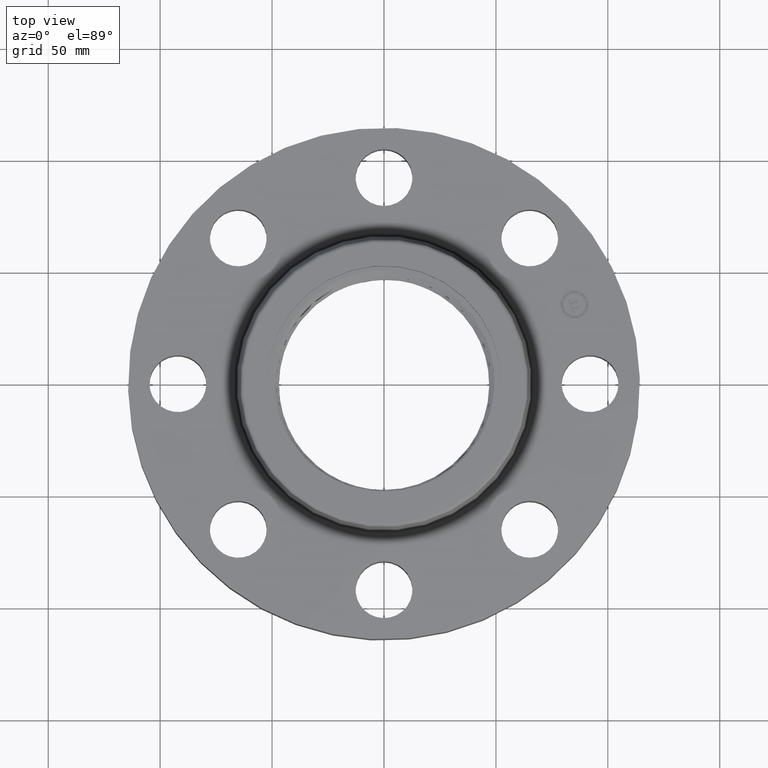
[diagram: clean part render]
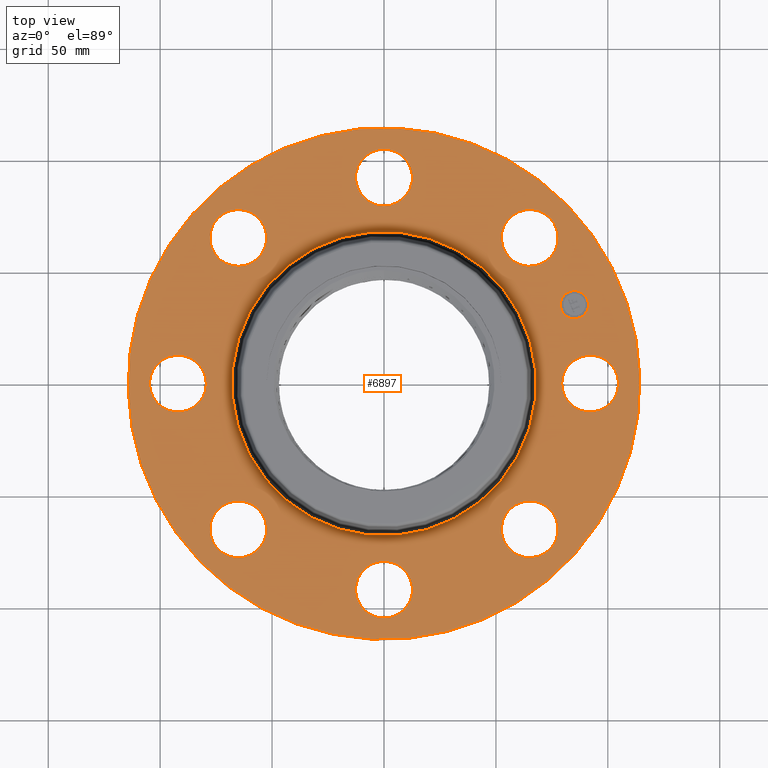
[diagram: same view with one face highlighted and labeled with its STEP entity id]
A machine part, top view. The second image highlights one B-rep face of the part: STEP entity #6897.
In plain terms, the highlighted planar face has unit normal (0, 0, -1).
Its self-contained STEP definition (entity closure, byte-faithful):
#536=AXIS2_PLACEMENT_3D('Circle Axis2P3D',#534,#535,$) ;
#548=AXIS2_PLACEMENT_3D('Circle Axis2P3D',#546,#547,$) ;
#572=AXIS2_PLACEMENT_3D('Circle Axis2P3D',#570,#571,$) ;
#591=AXIS2_PLACEMENT_3D('Circle Axis2P3D',#589,#590,$) ;
#608=AXIS2_PLACEMENT_3D('Circle Axis2P3D',#606,#607,$) ;
#643=AXIS2_PLACEMENT_3D('Circle Axis2P3D',#641,#642,$) ;
#765=AXIS2_PLACEMENT_3D('Circle Axis2P3D',#763,#764,$) ;
#777=AXIS2_PLACEMENT_3D('Circle Axis2P3D',#775,#776,$) ;
#808=AXIS2_PLACEMENT_3D('Circle Axis2P3D',#806,#807,$) ;
#820=AXIS2_PLACEMENT_3D('Circle Axis2P3D',#818,#819,$) ;
#851=AXIS2_PLACEMENT_3D('Circle Axis2P3D',#849,#850,$) ;
#863=AXIS2_PLACEMENT_3D('Circle Axis2P3D',#861,#862,$) ;
#894=AXIS2_PLACEMENT_3D('Circle Axis2P3D',#892,#893,$) ;
#906=AXIS2_PLACEMENT_3D('Circle Axis2P3D',#904,#905,$) ;
#937=AXIS2_PLACEMENT_3D('Circle Axis2P3D',#935,#936,$) ;
#949=AXIS2_PLACEMENT_3D('Circle Axis2P3D',#947,#948,$) ;
#980=AXIS2_PLACEMENT_3D('Circle Axis2P3D',#978,#979,$) ;
#992=AXIS2_PLACEMENT_3D('Circle Axis2P3D',#990,#991,$) ;
#1023=AXIS2_PLACEMENT_3D('Circle Axis2P3D',#1021,#1022,$) ;
#1035=AXIS2_PLACEMENT_3D('Circle Axis2P3D',#1033,#1034,$) ;
#6837=AXIS2_PLACEMENT_3D('Plane Axis2P3D',#6834,#6835,#6836) ;
#6881=AXIS2_PLACEMENT_3D('Circle Axis2P3D',#6879,#6880,$) ;
#6890=AXIS2_PLACEMENT_3D('Circle Axis2P3D',#6888,#6889,$) ;
#524=CARTESIAN_POINT('Vertex',(3.18620871907,0.239712769303,1.38000000001)) ;
#531=CARTESIAN_POINT('Vertex',(4.06379128096,-0.239712769303,1.38000000001)) ;
#534=CARTESIAN_POINT('Axis2P3D Location',(3.62500000001,0.,1.38000000001)) ;
#546=CARTESIAN_POINT('Axis2P3D Location',(3.62500000001,0.,1.38000000001)) ;
#567=CARTESIAN_POINT('Vertex',(2.15741492373,3.94912152852,1.38000000001)) ;
#570=CARTESIAN_POINT('Axis2P3D Location',(0.,0.,1.38000000001)) ;
#574=CARTESIAN_POINT('Vertex',(-2.15741492373,-3.94912152852,1.38000000001)) ;
#589=CARTESIAN_POINT('Axis2P3D Location',(0.,0.,1.38000000001)) ;
#606=CARTESIAN_POINT('Axis2P3D Location',(0.,0.,1.38000000001)) ;
#610=CARTESIAN_POINT('Vertex',(1.2826291864,2.34783697721,1.38000000001)) ;
#612=CARTESIAN_POINT('Vertex',(-1.2826291864,-2.34783697721,1.38000000001)) ;
#641=CARTESIAN_POINT('Axis2P3D Location',(0.,0.,1.38000000001)) ;
#753=CARTESIAN_POINT('Vertex',(-2.42249231624,2.08348726682,1.38000000001)) ;
#760=CARTESIAN_POINT('Vertex',(-2.70403184738,3.04303689681,1.38000000001)) ;
#763=CARTESIAN_POINT('Axis2P3D Location',(-2.56326208181,2.56326208181,1.38000000001)) ;
#775=CARTESIAN_POINT('Axis2P3D Location',(-2.56326208181,2.56326208181,1.38000000001)) ;
#796=CARTESIAN_POINT('Vertex',(0.239712769303,-3.18620871907,1.38000000001)) ;
#803=CARTESIAN_POINT('Vertex',(-0.239712769303,-4.06379128096,1.38000000001)) ;
#806=CARTESIAN_POINT('Axis2P3D Location',(-3.37515236756E-016,-3.62500000001,1.38000000001)) ;
#818=CARTESIAN_POINT('Axis2P3D Location',(-3.37515236756E-016,-3.62500000001,1.38000000001)) ;
#839=CARTESIAN_POINT('Vertex',(-0.239712769303,3.18620871907,1.38000000001)) ;
#846=CARTESIAN_POINT('Vertex',(0.239712769303,4.06379128096,1.38000000001)) ;
#849=CARTESIAN_POINT('Axis2P3D Location',(-6.65901697039E-016,3.62500000001,1.38000000001)) ;
#861=CARTESIAN_POINT('Axis2P3D Location',(-6.65901697039E-016,3.62500000001,1.38000000001)) ;
#882=CARTESIAN_POINT('Vertex',(-2.08348726682,-2.42249231624,1.38000000001)) ;
#889=CARTESIAN_POINT('Vertex',(-3.04303689681,-2.70403184738,1.38000000001)) ;
#892=CARTESIAN_POINT('Axis2P3D Location',(-2.56326208181,-2.56326208181,1.38000000001)) ;
#904=CARTESIAN_POINT('Axis2P3D Location',(-2.56326208181,-2.56326208181,1.38000000001)) ;
#925=CARTESIAN_POINT('Vertex',(2.08348726682,2.42249231624,1.38000000001)) ;
#932=CARTESIAN_POINT('Vertex',(3.04303689681,2.70403184738,1.38000000001)) ;
#935=CARTESIAN_POINT('Axis2P3D Location',(2.56326208181,2.56326208181,1.38000000001)) ;
#947=CARTESIAN_POINT('Axis2P3D Location',(2.56326208181,2.56326208181,1.38000000001)) ;
#968=CARTESIAN_POINT('Vertex',(-3.18620871907,-0.239712769303,1.38000000001)) ;
#975=CARTESIAN_POINT('Vertex',(-4.06379128096,0.239712769303,1.38000000001)) ;
#978=CARTESIAN_POINT('Axis2P3D Location',(-3.62500000001,-4.43934464693E-016,1.38000000001)) ;
#990=CARTESIAN_POINT('Axis2P3D Location',(-3.62500000001,-4.43934464693E-016,1.38000000001)) ;
#1011=CARTESIAN_POINT('Vertex',(2.42249231624,-2.08348726682,1.38000000001)) ;
#1018=CARTESIAN_POINT('Vertex',(2.70403184738,-3.04303689681,1.38000000001)) ;
#1021=CARTESIAN_POINT('Axis2P3D Location',(2.56326208181,-2.56326208181,1.38000000001)) ;
#1033=CARTESIAN_POINT('Axis2P3D Location',(2.56326208181,-2.56326208181,1.38000000001)) ;
#6834=CARTESIAN_POINT('Axis2P3D Location',(0.,4.50000000002,1.38000000001)) ;
#6879=CARTESIAN_POINT('Axis2P3D Location',(3.34906330537,1.38722744233,1.38000000001)) ;
#6883=CARTESIAN_POINT('Vertex',(3.25434915586,1.61588762663,1.38000000001)) ;
#6885=CARTESIAN_POINT('Vertex',(3.44377745488,1.15856725803,1.38000000001)) ;
#6888=CARTESIAN_POINT('Axis2P3D Location',(3.34906330537,1.38722744233,1.38000000001)) ;
#535=DIRECTION('Axis2P3D Direction',(0.,-0.,-0.0393700787402)) ;
#547=DIRECTION('Axis2P3D Direction',(0.,-0.,-0.0393700787402)) ;
#571=DIRECTION('Axis2P3D Direction',(0.,0.,-0.0393700787402)) ;
#590=DIRECTION('Axis2P3D Direction',(0.,0.,-0.0393700787402)) ;
#607=DIRECTION('Axis2P3D Direction',(0.,0.,-0.0393700787402)) ;
#642=DIRECTION('Axis2P3D Direction',(0.,0.,-0.0393700787402)) ;
#764=DIRECTION('Axis2P3D Direction',(0.,0.,-0.0393700787402)) ;
#776=DIRECTION('Axis2P3D Direction',(0.,0.,-0.0393700787402)) ;
#807=DIRECTION('Axis2P3D Direction',(0.,-0.,-0.0393700787402)) ;
#819=DIRECTION('Axis2P3D Direction',(0.,-0.,-0.0393700787402)) ;
#850=DIRECTION('Axis2P3D Direction',(0.,0.,-0.0393700787402)) ;
#862=DIRECTION('Axis2P3D Direction',(0.,0.,-0.0393700787402)) ;
#893=DIRECTION('Axis2P3D Direction',(-0.,0.,-0.0393700787402)) ;
#905=DIRECTION('Axis2P3D Direction',(-0.,0.,-0.0393700787402)) ;
#936=DIRECTION('Axis2P3D Direction',(0.,0.,-0.0393700787402)) ;
#948=DIRECTION('Axis2P3D Direction',(0.,0.,-0.0393700787402)) ;
#979=DIRECTION('Axis2P3D Direction',(-0.,0.,-0.0393700787402)) ;
#991=DIRECTION('Axis2P3D Direction',(-0.,0.,-0.0393700787402)) ;
#1022=DIRECTION('Axis2P3D Direction',(0.,-0.,-0.0393700787402)) ;
#1034=DIRECTION('Axis2P3D Direction',(0.,-0.,-0.0393700787402)) ;
#6835=DIRECTION('Axis2P3D Direction',(0.,0.,-0.0393700787402)) ;
#6836=DIRECTION('Axis2P3D XDirection',(0.0393700787402,0.,0.)) ;
#6880=DIRECTION('Axis2P3D Direction',(0.,0.,-0.0393700787402)) ;
#6889=DIRECTION('Axis2P3D Direction',(0.,0.,-0.0393700787402)) ;
#6840=ORIENTED_EDGE('',*,*,#576,.F.) ;
#6841=ORIENTED_EDGE('',*,*,#593,.F.) ;
#6844=ORIENTED_EDGE('',*,*,#538,.T.) ;
#6845=ORIENTED_EDGE('',*,*,#550,.T.) ;
#6848=ORIENTED_EDGE('',*,*,#645,.T.) ;
#6849=ORIENTED_EDGE('',*,*,#614,.T.) ;
#6852=ORIENTED_EDGE('',*,*,#1037,.T.) ;
#6853=ORIENTED_EDGE('',*,*,#1025,.T.) ;
#6856=ORIENTED_EDGE('',*,*,#822,.T.) ;
#6857=ORIENTED_EDGE('',*,*,#810,.T.) ;
#6860=ORIENTED_EDGE('',*,*,#908,.T.) ;
#6861=ORIENTED_EDGE('',*,*,#896,.T.) ;
#6864=ORIENTED_EDGE('',*,*,#994,.T.) ;
#6865=ORIENTED_EDGE('',*,*,#982,.T.) ;
#6868=ORIENTED_EDGE('',*,*,#779,.T.) ;
#6869=ORIENTED_EDGE('',*,*,#767,.T.) ;
#6872=ORIENTED_EDGE('',*,*,#865,.T.) ;
#6873=ORIENTED_EDGE('',*,*,#853,.T.) ;
#6876=ORIENTED_EDGE('',*,*,#951,.T.) ;
#6877=ORIENTED_EDGE('',*,*,#939,.T.) ;
#6894=ORIENTED_EDGE('',*,*,#6887,.T.) ;
#6895=ORIENTED_EDGE('',*,*,#6892,.T.) ;
#6846=FACE_BOUND('',#6843,.T.) ;
#6850=FACE_BOUND('',#6847,.T.) ;
#6854=FACE_BOUND('',#6851,.T.) ;
#6858=FACE_BOUND('',#6855,.T.) ;
#6862=FACE_BOUND('',#6859,.T.) ;
#6866=FACE_BOUND('',#6863,.T.) ;
#6870=FACE_BOUND('',#6867,.T.) ;
#6874=FACE_BOUND('',#6871,.T.) ;
#6878=FACE_BOUND('',#6875,.T.) ;
#6896=FACE_BOUND('',#6893,.T.) ;
#6897=ADVANCED_FACE('PartBody',(#6842,#6846,#6850,#6854,#6858,#6862,#6866,#6870,#6874,#6878,#6896),#6838,.F.) ;
#537=CIRCLE('generated circle',#536,0.500000000002) ;
#549=CIRCLE('generated circle',#548,0.500000000002) ;
#573=CIRCLE('generated circle',#572,4.50000000002) ;
#592=CIRCLE('generated circle',#591,4.50000000002) ;
#609=CIRCLE('generated circle',#608,2.67534597788) ;
#644=CIRCLE('generated circle',#643,2.67534597788) ;
#766=CIRCLE('generated circle',#765,0.500000000002) ;
#778=CIRCLE('generated circle',#777,0.500000000002) ;
#809=CIRCLE('generated circle',#808,0.500000000002) ;
#821=CIRCLE('generated circle',#820,0.500000000002) ;
#852=CIRCLE('generated circle',#851,0.500000000002) ;
#864=CIRCLE('generated circle',#863,0.500000000002) ;
#895=CIRCLE('generated circle',#894,0.500000000002) ;
#907=CIRCLE('generated circle',#906,0.500000000002) ;
#938=CIRCLE('generated circle',#937,0.500000000002) ;
#950=CIRCLE('generated circle',#949,0.500000000002) ;
#981=CIRCLE('generated circle',#980,0.500000000002) ;
#993=CIRCLE('generated circle',#992,0.500000000002) ;
#1024=CIRCLE('generated circle',#1023,0.500000000002) ;
#1036=CIRCLE('generated circle',#1035,0.500000000002) ;
#6882=CIRCLE('generated circle',#6881,0.247500000001) ;
#6891=CIRCLE('generated circle',#6890,0.247500000001) ;
#538=EDGE_CURVE('',#525,#532,#537,.T.) ;
#550=EDGE_CURVE('',#532,#525,#549,.T.) ;
#576=EDGE_CURVE('',#568,#575,#573,.T.) ;
#593=EDGE_CURVE('',#575,#568,#592,.T.) ;
#614=EDGE_CURVE('',#611,#613,#609,.T.) ;
#645=EDGE_CURVE('',#613,#611,#644,.T.) ;
#767=EDGE_CURVE('',#754,#761,#766,.T.) ;
#779=EDGE_CURVE('',#761,#754,#778,.T.) ;
#810=EDGE_CURVE('',#797,#804,#809,.T.) ;
#822=EDGE_CURVE('',#804,#797,#821,.T.) ;
#853=EDGE_CURVE('',#840,#847,#852,.T.) ;
#865=EDGE_CURVE('',#847,#840,#864,.T.) ;
#896=EDGE_CURVE('',#883,#890,#895,.T.) ;
#908=EDGE_CURVE('',#890,#883,#907,.T.) ;
#939=EDGE_CURVE('',#926,#933,#938,.T.) ;
#951=EDGE_CURVE('',#933,#926,#950,.T.) ;
#982=EDGE_CURVE('',#969,#976,#981,.T.) ;
#994=EDGE_CURVE('',#976,#969,#993,.T.) ;
#1025=EDGE_CURVE('',#1012,#1019,#1024,.T.) ;
#1037=EDGE_CURVE('',#1019,#1012,#1036,.T.) ;
#6887=EDGE_CURVE('',#6884,#6886,#6882,.T.) ;
#6892=EDGE_CURVE('',#6886,#6884,#6891,.T.) ;
#6839=EDGE_LOOP('',(#6840,#6841)) ;
#6843=EDGE_LOOP('',(#6844,#6845)) ;
#6847=EDGE_LOOP('',(#6848,#6849)) ;
#6851=EDGE_LOOP('',(#6852,#6853)) ;
#6855=EDGE_LOOP('',(#6856,#6857)) ;
#6859=EDGE_LOOP('',(#6860,#6861)) ;
#6863=EDGE_LOOP('',(#6864,#6865)) ;
#6867=EDGE_LOOP('',(#6868,#6869)) ;
#6871=EDGE_LOOP('',(#6872,#6873)) ;
#6875=EDGE_LOOP('',(#6876,#6877)) ;
#6893=EDGE_LOOP('',(#6894,#6895)) ;
#6842=FACE_OUTER_BOUND('',#6839,.T.) ;
#6838=PLANE('',#6837) ;
#525=VERTEX_POINT('',#524) ;
#532=VERTEX_POINT('',#531) ;
#568=VERTEX_POINT('',#567) ;
#575=VERTEX_POINT('',#574) ;
#611=VERTEX_POINT('',#610) ;
#613=VERTEX_POINT('',#612) ;
#754=VERTEX_POINT('',#753) ;
#761=VERTEX_POINT('',#760) ;
#797=VERTEX_POINT('',#796) ;
#804=VERTEX_POINT('',#803) ;
#840=VERTEX_POINT('',#839) ;
#847=VERTEX_POINT('',#846) ;
#883=VERTEX_POINT('',#882) ;
#890=VERTEX_POINT('',#889) ;
#926=VERTEX_POINT('',#925) ;
#933=VERTEX_POINT('',#932) ;
#969=VERTEX_POINT('',#968) ;
#976=VERTEX_POINT('',#975) ;
#1012=VERTEX_POINT('',#1011) ;
#1019=VERTEX_POINT('',#1018) ;
#6884=VERTEX_POINT('',#6883) ;
#6886=VERTEX_POINT('',#6885) ;